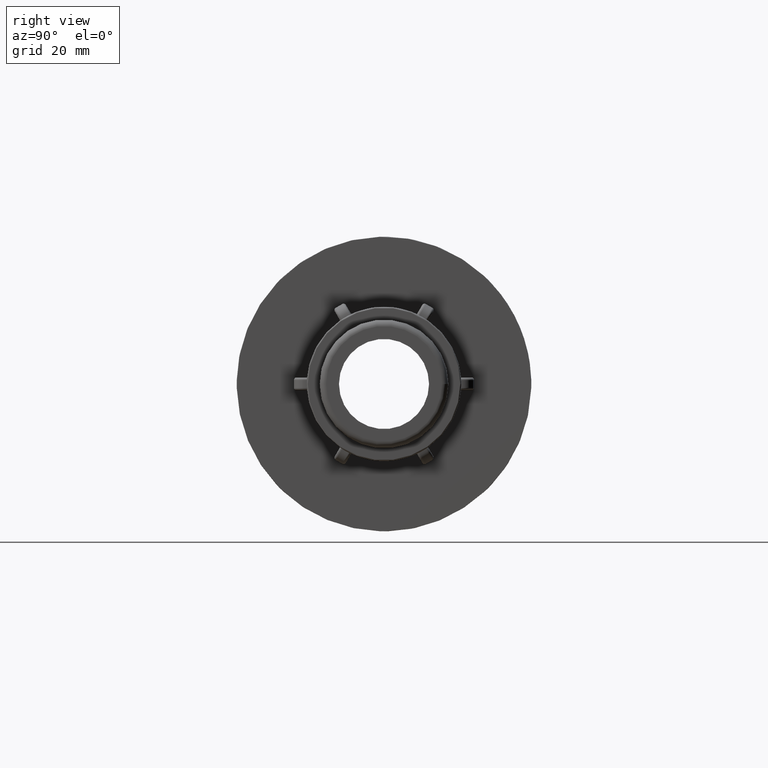
[diagram: clean part render]
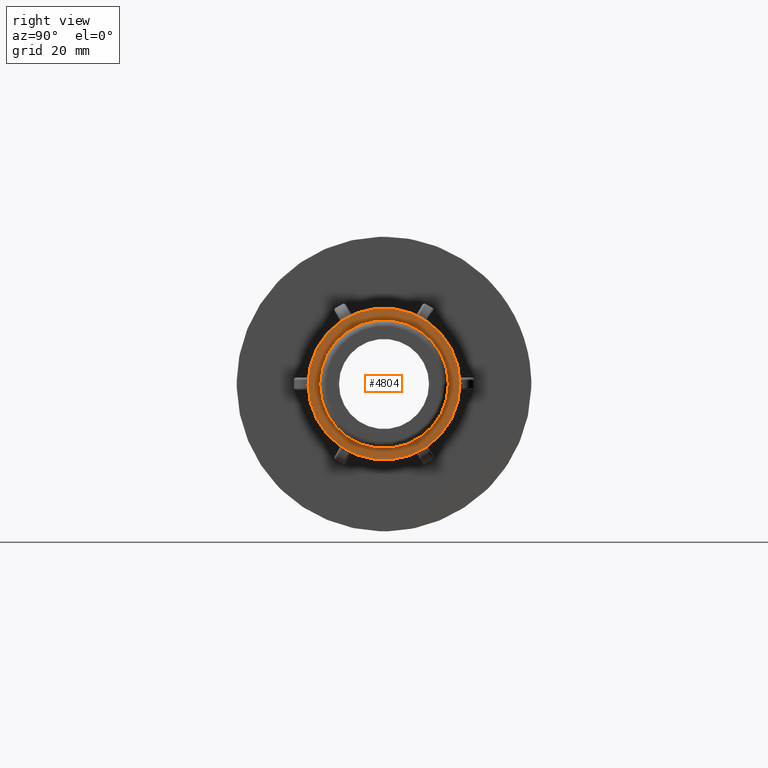
[diagram: same view with one face highlighted and labeled with its STEP entity id]
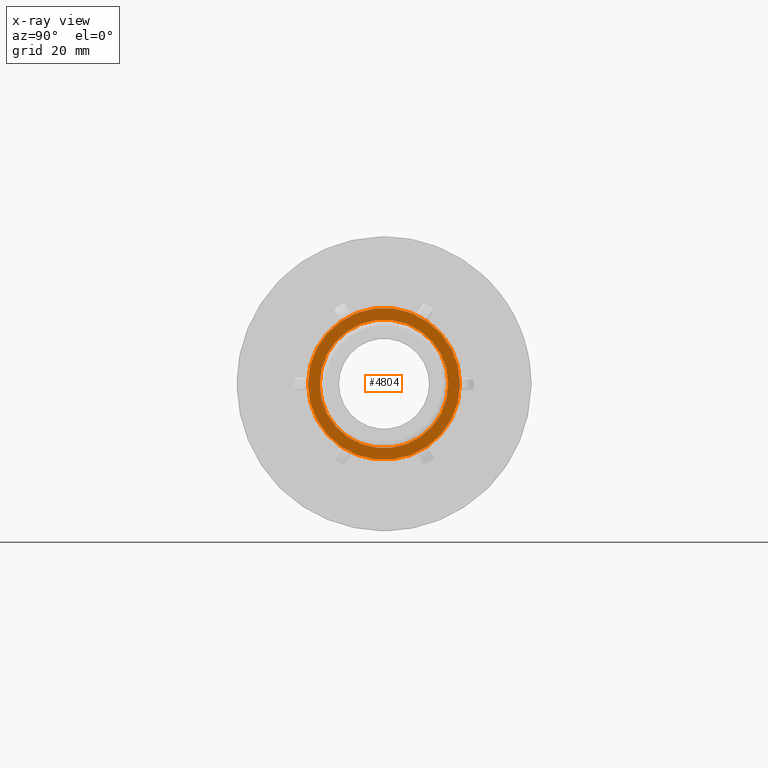
[diagram: x-ray of the same camera — body ghosted, the highlighted face saturated]
A machine part, right view. The second image highlights one B-rep face of the part: STEP entity #4804.
The next image is the same camera in x-ray: the body ghosted, the highlighted face saturated — about 0% of this face is hidden behind the body in this view.
In plain terms, the highlighted planar face has unit normal (1, 0, 0).
Its self-contained STEP definition (entity closure, byte-faithful):
#50=FACE_BOUND('',#566,.T.);
#96=PLANE('',#5184);
#265=FACE_OUTER_BOUND('',#565,.T.);
#565=EDGE_LOOP('',(#3469));
#566=EDGE_LOOP('',(#3470));
#1646=CIRCLE('',#5183,15.60019);
#1647=CIRCLE('',#5185,13.2205);
#1992=VERTEX_POINT('',#7569);
#1993=VERTEX_POINT('',#7572);
#2533=EDGE_CURVE('',#1992,#1992,#1646,.T.);
#2534=EDGE_CURVE('',#1993,#1993,#1647,.T.);
#3469=ORIENTED_EDGE('',*,*,#2533,.F.);
#3470=ORIENTED_EDGE('',*,*,#2534,.F.);
#4804=ADVANCED_FACE('',(#265,#50),#96,.T.);
#5183=AXIS2_PLACEMENT_3D('',#7570,#6011,#6012);
#5184=AXIS2_PLACEMENT_3D('',#7571,#6013,#6014);
#5185=AXIS2_PLACEMENT_3D('',#7573,#6015,#6016);
#6011=DIRECTION('center_axis',(-1.,0.,0.));
#6012=DIRECTION('ref_axis',(0.,-1.,1.83697019872103E-16));
#6013=DIRECTION('center_axis',(1.,0.,0.));
#6014=DIRECTION('ref_axis',(0.,0.,-1.));
#6015=DIRECTION('center_axis',(1.,0.,0.));
#6016=DIRECTION('ref_axis',(0.,0.,-1.));
#7569=CARTESIAN_POINT('',(-17.,15.60019,-4.77618068739764E-15));
#7570=CARTESIAN_POINT('Origin',(-17.,0.,0.));
#7571=CARTESIAN_POINT('Origin',(-17.,13.2205,0.));
#7572=CARTESIAN_POINT('',(-17.,13.2205,0.));
#7573=CARTESIAN_POINT('Origin',(-17.,0.,0.));